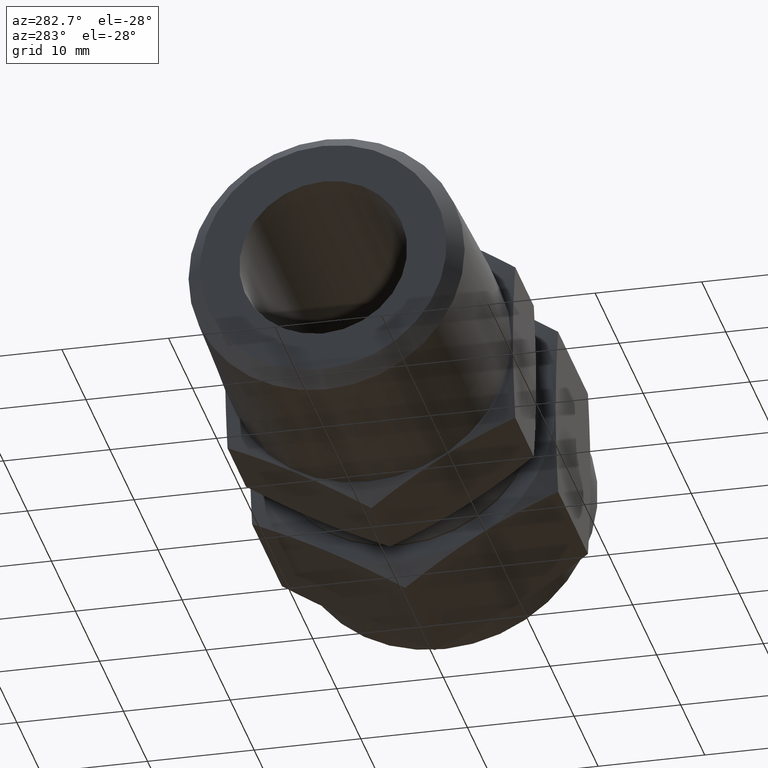
[diagram: clean part render]
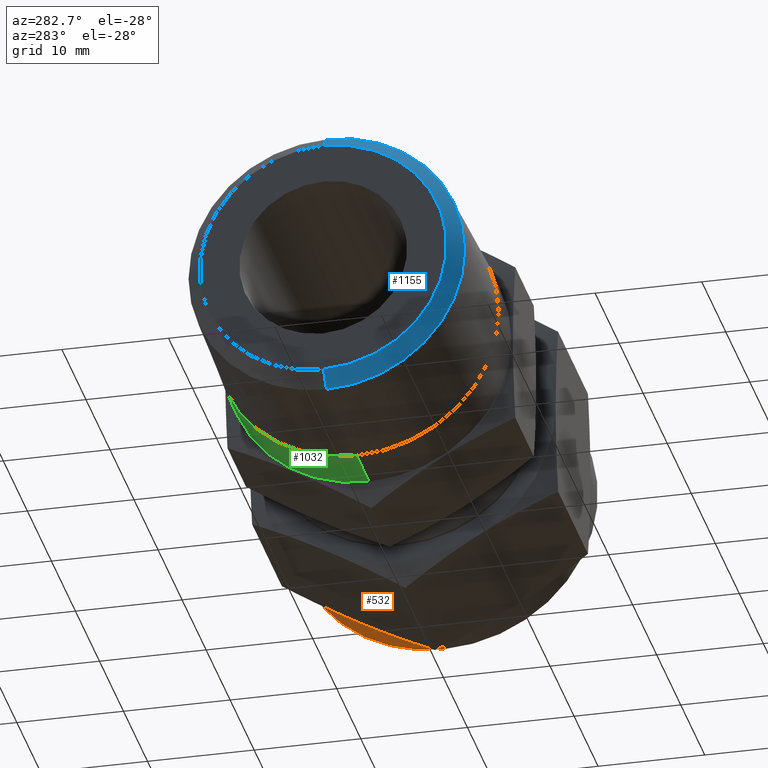
[diagram: same view with three faces highlighted in distinct colors, each labeled with its STEP entity id]
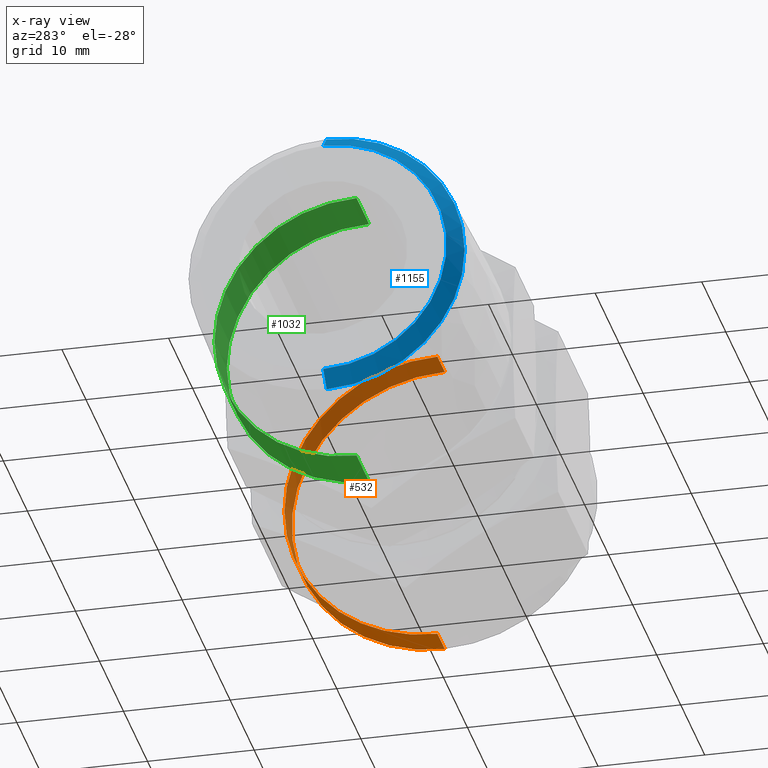
[diagram: x-ray of the same camera — body ghosted, the three highlighted faces saturated]
A machine part, auxiliary view with three faces highlighted in distinct colors.
The next image is the same camera in x-ray (body ghosted, the three faces saturated) — at least one of them is partly hidden behind the body in this view.
Their STEP definitions:

[orange] entity #532 — the highlighted cylindrical surface (partial cylindrical patch) has radius 14.351 mm, axis along (-1, 0, 0).
#11 = CARTESIAN_POINT ( 'NONE',  ( 40.25900000000000034, -4.323602077489080103E-15, 14.35099999999999909 ) ) ;
#27 = EDGE_CURVE ( 'NONE', #543, #1549, #467, .T. ) ;
#174 = AXIS2_PLACEMENT_3D ( 'NONE', #1406, #709, #720 ) ;
#175 = VECTOR ( 'NONE', #735, 1000.000000000000000 ) ;
#177 = CIRCLE ( 'NONE', #1225, 14.35099999999999909 ) ;
#179 = CARTESIAN_POINT ( 'NONE',  ( 50.54599999999999937, -4.850342349982379426E-15, -4.850342349982379426E-15 ) ) ;
#191 = CARTESIAN_POINT ( 'NONE',  ( 40.25900000000000034, -8.087369207480929340E-16, -14.35099999999999909 ) ) ;
#201 = VECTOR ( 'NONE', #1337, 1000.000000000000000 ) ;
#276 = AXIS2_PLACEMENT_3D ( 'NONE', #179, #1732, #1040 ) ;
#308 = DIRECTION ( 'NONE',  ( -1.000000000000000000, 2.220446049250309876E-16, 2.220446049250309876E-16 ) ) ;
#320 = CARTESIAN_POINT ( 'NONE',  ( 47.49799999999999756, 14.35099999999999909, -7.698508497355758766E-15 ) ) ;
#409 = ORIENTED_EDGE ( 'NONE', *, *, #27, .F. ) ;
#449 = CARTESIAN_POINT ( 'NONE',  ( 47.49799999999999756, -4.059202681015029379E-15, -14.35099999999999909 ) ) ;
#454 = EDGE_CURVE ( 'NONE', #543, #648, #652, .T. ) ;
#467 = LINE ( 'NONE', #11, #175 ) ;
#470 = AXIS2_PLACEMENT_3D ( 'NONE', #1584, #1723, #879 ) ;
#487 = ORIENTED_EDGE ( 'NONE', *, *, #1132, .T. ) ;
#520 = VERTEX_POINT ( 'NONE', #449 ) ;
#532 = ADVANCED_FACE ( 'NONE', ( #1312 ), #576, .T. ) ;
#533 = VERTEX_POINT ( 'NONE', #1497 ) ;
#543 = VERTEX_POINT ( 'NONE', #1058 ) ;
#566 = CIRCLE ( 'NONE', #470, 14.35099999999999909 ) ;
#576 = CYLINDRICAL_SURFACE ( 'NONE', #1830, 14.35099999999999909 ) ;
#625 = EDGE_CURVE ( 'NONE', #520, #648, #630, .T. ) ;
#630 = LINE ( 'NONE', #191, #201 ) ;
#638 = CARTESIAN_POINT ( 'NONE',  ( 50.54599999999999937, -3.092909771611890180E-15, -14.35099999999999909 ) ) ;
#648 = VERTEX_POINT ( 'NONE', #638 ) ;
#652 = CIRCLE ( 'NONE', #276, 14.35099999999999909 ) ;
#687 = VERTEX_POINT ( 'NONE', #1535 ) ;
#693 = CARTESIAN_POINT ( 'NONE',  ( 47.49799999999999756, -4.173550394170889906E-15, -4.173550394170889906E-15 ) ) ;
#709 = DIRECTION ( 'NONE',  ( 1.000000000000000000, -2.220446049250309876E-16, -2.220446049250309876E-16 ) ) ;
#714 = EDGE_CURVE ( 'NONE', #520, #687, #920, .T. ) ;
#720 = DIRECTION ( 'NONE',  ( 0.000000000000000000, 0.000000000000000000, 1.000000000000000000 ) ) ;
#735 = DIRECTION ( 'NONE',  ( -1.000000000000000000, 2.220446049250309876E-16, 2.220446049250309876E-16 ) ) ;
#842 = EDGE_CURVE ( 'NONE', #533, #1549, #990, .T. ) ;
#879 = DIRECTION ( 'NONE',  ( 0.000000000000000000, 0.000000000000000000, 1.000000000000000000 ) ) ;
#882 = EDGE_LOOP ( 'NONE', ( #409, #1198, #1648, #1188, #487, #1306, #1744 ) ) ;
#920 = CIRCLE ( 'NONE', #1169, 14.35099999999999909 ) ;
#929 = CARTESIAN_POINT ( 'NONE',  ( 47.49799999999999756, -4.173550394170889906E-15, -4.173550394170889906E-15 ) ) ;
#981 = EDGE_CURVE ( 'NONE', #1453, #533, #566, .T. ) ;
#990 = CIRCLE ( 'NONE', #174, 14.35099999999999909 ) ;
#1024 = DIRECTION ( 'NONE',  ( 0.000000000000000000, -2.684035878178853039E-32, 1.000000000000000000 ) ) ;
#1040 = DIRECTION ( 'NONE',  ( 0.000000000000000000, 0.000000000000000000, 1.000000000000000000 ) ) ;
#1058 = CARTESIAN_POINT ( 'NONE',  ( 50.54599999999999937, -6.187857409627179608E-15, 14.35099999999999909 ) ) ;
#1102 = DIRECTION ( 'NONE',  ( 0.000000000000000000, 0.000000000000000000, 1.000000000000000000 ) ) ;
#1132 = EDGE_CURVE ( 'NONE', #687, #1453, #177, .T. ) ;
#1169 = AXIS2_PLACEMENT_3D ( 'NONE', #693, #1262, #1102 ) ;
#1188 = ORIENTED_EDGE ( 'NONE', *, *, #714, .T. ) ;
#1198 = ORIENTED_EDGE ( 'NONE', *, *, #454, .T. ) ;
#1225 = AXIS2_PLACEMENT_3D ( 'NONE', #929, #1368, #1347 ) ;
#1262 = DIRECTION ( 'NONE',  ( 1.000000000000000000, -2.220446049250309876E-16, -2.220446049250309876E-16 ) ) ;
#1306 = ORIENTED_EDGE ( 'NONE', *, *, #981, .T. ) ;
#1312 = FACE_OUTER_BOUND ( 'NONE', #882, .T. ) ;
#1337 = DIRECTION ( 'NONE',  ( 1.000000000000000000, -2.220446049250309876E-16, -2.220446049250309876E-16 ) ) ;
#1347 = DIRECTION ( 'NONE',  ( 0.000000000000000000, 0.000000000000000000, 1.000000000000000000 ) ) ;
#1368 = DIRECTION ( 'NONE',  ( 1.000000000000000000, -2.220446049250309876E-16, -2.220446049250309876E-16 ) ) ;
#1406 = CARTESIAN_POINT ( 'NONE',  ( 47.49799999999999756, -4.173550394170889906E-15, -4.173550394170889906E-15 ) ) ;
#1453 = VERTEX_POINT ( 'NONE', #320 ) ;
#1497 = CARTESIAN_POINT ( 'NONE',  ( 47.49799999999999756, 7.175499999999999545, 12.42833056971049999 ) ) ;
#1531 = CARTESIAN_POINT ( 'NONE',  ( 47.49799999999999756, -5.443375242740470423E-16, 14.35099999999999909 ) ) ;
#1535 = CARTESIAN_POINT ( 'NONE',  ( 47.49799999999999756, 7.175499999999999545, -12.42833056971049999 ) ) ;
#1549 = VERTEX_POINT ( 'NONE', #1531 ) ;
#1584 = CARTESIAN_POINT ( 'NONE',  ( 47.49799999999999756, -4.173550394170889906E-15, -4.173550394170889906E-15 ) ) ;
#1648 = ORIENTED_EDGE ( 'NONE', *, *, #625, .F. ) ;
#1723 = DIRECTION ( 'NONE',  ( 1.000000000000000000, -2.220446049250309876E-16, -2.220446049250309876E-16 ) ) ;
#1732 = DIRECTION ( 'NONE',  ( -1.000000000000000000, 2.220446049250309876E-16, 2.220446049250309876E-16 ) ) ;
#1744 = ORIENTED_EDGE ( 'NONE', *, *, #842, .T. ) ;
#1745 = CARTESIAN_POINT ( 'NONE',  ( 40.25900000000000034, -2.566169499118589674E-15, -2.566169499118589674E-15 ) ) ;
#1830 = AXIS2_PLACEMENT_3D ( 'NONE', #1745, #308, #1024 ) ;

[blue] entity #1155 — the highlighted conical surface has half-angle 45 deg.
#61 = LINE ( 'NONE', #254, #1214 ) ;
#79 = CARTESIAN_POINT ( 'NONE',  ( 1.383158078584149742, 2.020769493310560093E-15, 1.385294314972349919E-15 ) ) ;
#89 = CARTESIAN_POINT ( 'NONE',  ( 0.8858249999999999735, 4.796719770519399839E-15, 12.44917500000000032 ) ) ;
#206 = DIRECTION ( 'NONE',  ( -1.172426597400856872E-16, 0.000000000000000000, -1.000000000000000000 ) ) ;
#234 = EDGE_CURVE ( 'NONE', #418, #1354, #1171, .T. ) ;
#245 = AXIS2_PLACEMENT_3D ( 'NONE', #1617, #799, #1061 ) ;
#254 = CARTESIAN_POINT ( 'NONE',  ( 0.8858249999999999735, -7.634627088552659841E-16, -12.44917500000000032 ) ) ;
#274 = CARTESIAN_POINT ( 'NONE',  ( 0.000000000000000000, 9.485373098951090288E-16, -11.56334999999999980 ) ) ;
#331 = CONICAL_SURFACE ( 'NONE', #245, 12.44917500000000032, 0.7853981633974490562 ) ;
#333 = CARTESIAN_POINT ( 'NONE',  ( 1.383158078584149742, 4.353318880258740273E-16, 12.94650807858410069 ) ) ;
#380 = LINE ( 'NONE', #89, #1434 ) ;
#418 = VERTEX_POINT ( 'NONE', #333 ) ;
#421 = CARTESIAN_POINT ( 'NONE',  ( 7.049916206369739693E-16, 2.114974861910920133E-15, 2.114974861910920133E-15 ) ) ;
#536 = CARTESIAN_POINT ( 'NONE',  ( 1.383158078584139750, -9.297398575673040574E-16, -12.94650807858410069 ) ) ;
#546 = DIRECTION ( 'NONE',  ( -1.110223024625160238E-16, -1.008546637992209889E-16, -1.000000000000000000 ) ) ;
#562 = AXIS2_PLACEMENT_3D ( 'NONE', #79, #1062, #206 ) ;
#563 = EDGE_CURVE ( 'NONE', #1503, #418, #380, .T. ) ;
#701 = ORIENTED_EDGE ( 'NONE', *, *, #234, .F. ) ;
#764 = FACE_OUTER_BOUND ( 'NONE', #1326, .T. ) ;
#776 = ORIENTED_EDGE ( 'NONE', *, *, #1332, .F. ) ;
#799 = DIRECTION ( 'NONE',  ( 1.000000000000000000, -1.110223024625159992E-16, -1.110223024625159992E-16 ) ) ;
#934 = VERTEX_POINT ( 'NONE', #274 ) ;
#1038 = DIRECTION ( 'NONE',  ( -0.7071067811865470176, 2.364123853281010006E-16, 0.7071067811865480168 ) ) ;
#1050 = DIRECTION ( 'NONE',  ( 0.7071067811865470176, 7.940313945972320045E-17, 0.7071067811865480168 ) ) ;
#1061 = DIRECTION ( 'NONE',  ( -1.132173677557874823E-16, -1.008546637992209889E-16, -1.000000000000000000 ) ) ;
#1062 = DIRECTION ( 'NONE',  ( 1.000000000000000000, -1.110223024625159992E-16, -1.110223024625159992E-16 ) ) ;
#1089 = ORIENTED_EDGE ( 'NONE', *, *, #1587, .F. ) ;
#1155 = ADVANCED_FACE ( 'NONE', ( #764 ), #331, .T. ) ;
#1171 = CIRCLE ( 'NONE', #562, 12.94650807858410069 ) ;
#1214 = VECTOR ( 'NONE', #1038, 1000.000000000000000 ) ;
#1326 = EDGE_LOOP ( 'NONE', ( #1089, #701, #1403, #776 ) ) ;
#1332 = EDGE_CURVE ( 'NONE', #934, #1503, #1760, .T. ) ;
#1354 = VERTEX_POINT ( 'NONE', #536 ) ;
#1403 = ORIENTED_EDGE ( 'NONE', *, *, #563, .F. ) ;
#1434 = VECTOR ( 'NONE', #1050, 1000.000000000000000 ) ;
#1438 = AXIS2_PLACEMENT_3D ( 'NONE', #421, #1857, #546 ) ;
#1503 = VERTEX_POINT ( 'NONE', #1729 ) ;
#1587 = EDGE_CURVE ( 'NONE', #1354, #934, #61, .T. ) ;
#1617 = CARTESIAN_POINT ( 'NONE',  ( 0.8858249999999999735, 2.016628530832070034E-15, 2.016628530832070034E-15 ) ) ;
#1729 = CARTESIAN_POINT ( 'NONE',  ( 1.949923555955020345E-15, 4.697247826700840074E-15, 11.56334999999999980 ) ) ;
#1760 = CIRCLE ( 'NONE', #1438, 11.56334999999999980 ) ;
#1857 = DIRECTION ( 'NONE',  ( -1.000000000000000000, 1.110223024625159992E-16, 1.110223024625159992E-16 ) ) ;

[green] entity #1032 — the highlighted cylindrical surface (partial cylindrical patch) has radius 13.335 mm, axis along (1, -0, -0).
#28 = FACE_OUTER_BOUND ( 'NONE', #1600, .T. ) ;
#54 = ORIENTED_EDGE ( 'NONE', *, *, #263, .T. ) ;
#88 = ORIENTED_EDGE ( 'NONE', *, *, #1693, .F. ) ;
#159 = CARTESIAN_POINT ( 'NONE',  ( 16.45539000000000129, 2.880595761922680215E-16, 2.880595761922680215E-16 ) ) ;
#196 = VECTOR ( 'NONE', #1079, 1000.000000000000000 ) ;
#204 = AXIS2_PLACEMENT_3D ( 'NONE', #159, #1747, #1455 ) ;
#263 = EDGE_CURVE ( 'NONE', #1054, #1275, #835, .T. ) ;
#292 = DIRECTION ( 'NONE',  ( -1.000000000000000000, 1.110223024625159992E-16, 1.110223024625159992E-16 ) ) ;
#304 = AXIS2_PLACEMENT_3D ( 'NONE', #828, #688, #1266 ) ;
#389 = CARTESIAN_POINT ( 'NONE',  ( 19.05000000000000071, 9.998987862749102167E-32, -13.33499999999999908 ) ) ;
#464 = ORIENTED_EDGE ( 'NONE', *, *, #1856, .F. ) ;
#514 = DIRECTION ( 'NONE',  ( 1.000000000000000000, 6.797930850579320182E-33, -1.110223024625159992E-16 ) ) ;
#558 = VERTEX_POINT ( 'NONE', #1624 ) ;
#688 = DIRECTION ( 'NONE',  ( 1.000000000000000000, -1.110223024625159992E-16, -1.110223024625159992E-16 ) ) ;
#742 = VERTEX_POINT ( 'NONE', #389 ) ;
#821 = LINE ( 'NONE', #1393, #196 ) ;
#828 = CARTESIAN_POINT ( 'NONE',  ( 13.86078000000000010, 6.354751783382160908E-16, 0.000000000000000000 ) ) ;
#835 = CIRCLE ( 'NONE', #304, 13.33499999999999908 ) ;
#894 = LINE ( 'NONE', #1469, #945 ) ;
#945 = VECTOR ( 'NONE', #292, 1000.000000000000000 ) ;
#1025 = CARTESIAN_POINT ( 'NONE',  ( 13.86078000000000010, 6.354751783382160908E-16, -13.33499999999999908 ) ) ;
#1032 = ADVANCED_FACE ( 'NONE', ( #28 ), #1867, .T. ) ;
#1054 = VERTEX_POINT ( 'NONE', #1025 ) ;
#1079 = DIRECTION ( 'NONE',  ( 1.000000000000000000, -1.110223024625159992E-16, -1.110223024625159992E-16 ) ) ;
#1088 = ORIENTED_EDGE ( 'NONE', *, *, #1875, .F. ) ;
#1105 = CIRCLE ( 'NONE', #1402, 13.33499999999999908 ) ;
#1266 = DIRECTION ( 'NONE',  ( -1.300879996982982485E-16, 7.221334624624056647E-33, -1.000000000000000000 ) ) ;
#1275 = VERTEX_POINT ( 'NONE', #1683 ) ;
#1393 = CARTESIAN_POINT ( 'NONE',  ( 16.45539000000000129, -1.344952996629869802E-15, -13.33499999999999908 ) ) ;
#1402 = AXIS2_PLACEMENT_3D ( 'NONE', #1479, #514, #1769 ) ;
#1455 = DIRECTION ( 'NONE',  ( 0.000000000000000000, 7.221334624624056647E-33, -1.000000000000000000 ) ) ;
#1469 = CARTESIAN_POINT ( 'NONE',  ( 16.45539000000000129, 1.921072149014409691E-15, 13.33499999999999908 ) ) ;
#1479 = CARTESIAN_POINT ( 'NONE',  ( 19.05000000000000071, 1.565395858797950031E-31, 1.565395858797950031E-31 ) ) ;
#1600 = EDGE_LOOP ( 'NONE', ( #464, #54, #88, #1088 ) ) ;
#1624 = CARTESIAN_POINT ( 'NONE',  ( 19.05000000000000071, 1.633012572822140042E-15, 13.33499999999999908 ) ) ;
#1683 = CARTESIAN_POINT ( 'NONE',  ( 13.86078000000000010, 2.209131725206679734E-15, 13.33499999999999908 ) ) ;
#1693 = EDGE_CURVE ( 'NONE', #558, #1275, #894, .T. ) ;
#1747 = DIRECTION ( 'NONE',  ( 1.000000000000000000, -1.110223024625159992E-16, -1.110223024625159992E-16 ) ) ;
#1769 = DIRECTION ( 'NONE',  ( 0.000000000000000000, 7.498303609110688567E-33, -1.000000000000000000 ) ) ;
#1856 = EDGE_CURVE ( 'NONE', #1054, #742, #821, .T. ) ;
#1867 = CYLINDRICAL_SURFACE ( 'NONE', #204, 13.33499999999999908 ) ;
#1875 = EDGE_CURVE ( 'NONE', #742, #558, #1105, .T. ) ;